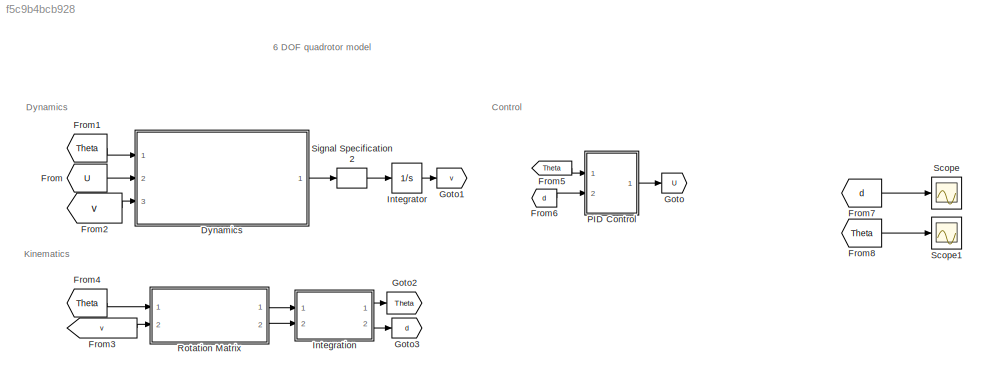
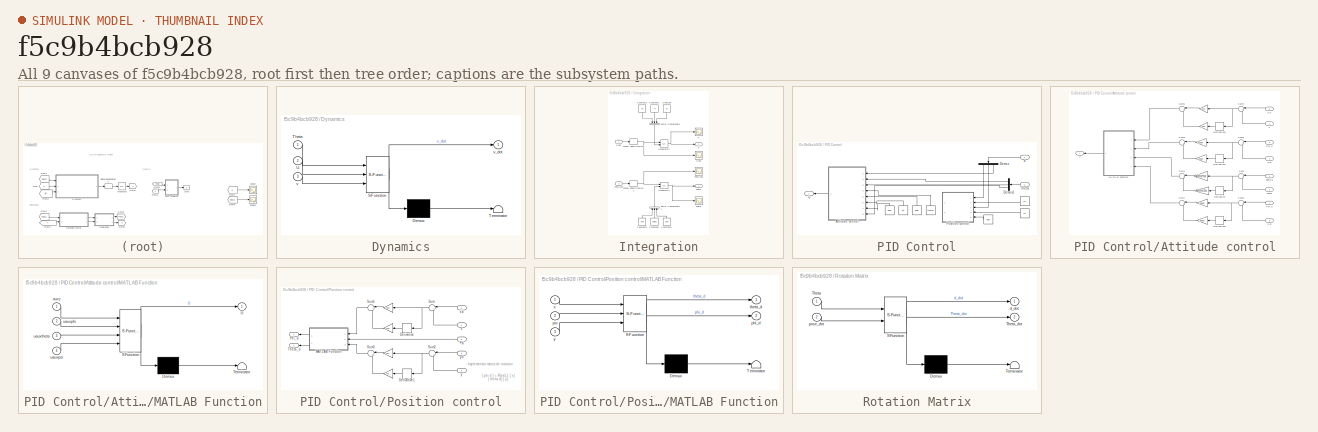
[diagram: thumbnail index - all 9 canvases of the model, root first then tree order]
MODEL slx_f5c9b4bcb928
KIND model
CONFIG AbsTol = auto
CONFIG EnableMultiTasking = off
CONFIG FixedStep = 0.01
CONFIG MaxStep = auto
CONFIG MinStep = auto
CONFIG RelTol = 1e-3
CONFIG SampleTimeConstraint = Unconstrained
CONFIG SolverName = ode1
CONFIG StartTime = 0.0
CONFIG StopTime = 30
WORKSPACE source: mxarray member
WORKSPACE Ixx = 3.0738e-05
WORKSPACE Iyy = 3.0849e-05
WORKSPACE Izz = 5.968e-05
WORKSPACE Jr: Simulink.Parameter (value not decoded)
WORKSPACE Kemf: Simulink.Parameter (value not decoded)
WORKSPACE Kt: Simulink.Parameter (value not decoded)
WORKSPACE L: Simulink.Parameter (value not decoded)
WORKSPACE R: Simulink.Parameter (value not decoded)
WORKSPACE b_m: Simulink.Parameter (value not decoded)
WORKSPACE g: Simulink.Parameter (value not decoded)
WORKSPACE kq = 1.058e-10
WORKSPACE kt = 3.334e-08
WORKSPACE l = 0.058
WORKSPACE m: Simulink.Parameter (value not decoded)
WORKSPACE qt = 5.4e-09
BLOCK [SubSystem] Dynamics
  ErrorFcn = Stateflow.Translate.translate
  PermitHierarchicalResolution = ExplicitOnly
  Ports = [3, 1]
  RequestExecContextInheritance = off
  SFBlockType = MATLAB Function
  TreatAsAtomicUnit = on
BLOCK [Demux] Dynamics/ Demux 
  Outputs = 1
  Ports = [1, 1]
BLOCK [S-Function] Dynamics/ SFunction 
  EnableBusSupport = on
  FunctionName = sf_sfun
  PortCounts = [3 2]
  Ports = [3, 2]
  SFcnIsStateOwnerBlock = off
  SFunctionDeploymentMode = off
  Tag = Stateflow S-Function 1
BLOCK [Terminator] Dynamics/ Terminator 
BLOCK [Inport] Dynamics/Theta
BLOCK [Inport] Dynamics/U
  Port = 2
BLOCK [Inport] Dynamics/v
  Port = 3
BLOCK [Outport] Dynamics/v_dot
BLOCK [From] From
  GotoTag = U
BLOCK [From] From1
  GotoTag = Theta
BLOCK [From] From2
  GotoTag = v
BLOCK [From] From3
  GotoTag = v
BLOCK [From] From4
  GotoTag = Theta
BLOCK [From] From5
  GotoTag = Theta
BLOCK [From] From6
  GotoTag = d
BLOCK [From] From7
  GotoTag = d
BLOCK [From] From8
  GotoTag = Theta
BLOCK [Goto] Goto
  GotoTag = U
BLOCK [Goto] Goto1
  GotoTag = v
BLOCK [Goto] Goto2
  GotoTag = Theta
BLOCK [Goto] Goto3
  GotoTag = d
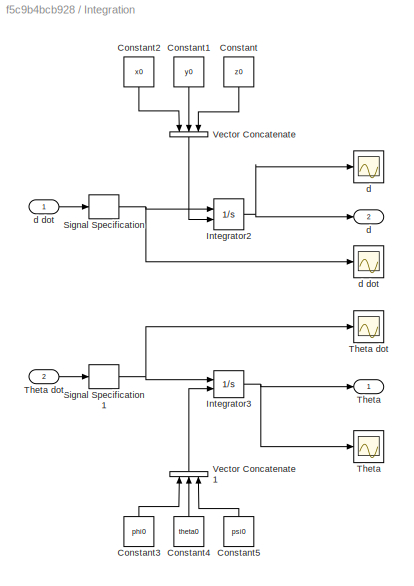
BLOCK [SubSystem] Integration
  Ports = [2, 2]
  RequestExecContextInheritance = off
BLOCK [Constant] Integration/Constant
  NameLocation = left
  Value = z0
BLOCK [Constant] Integration/Constant1
  NameLocation = left
  Value = y0
BLOCK [Constant] Integration/Constant2
  NameLocation = left
  Value = x0
BLOCK [Constant] Integration/Constant3
  NameLocation = right
  Value = phi0
BLOCK [Constant] Integration/Constant4
  NameLocation = right
  Value = theta0
BLOCK [Constant] Integration/Constant5
  NameLocation = right
  Value = psi0
BLOCK [Integrator] Integration/Integrator2
  InitialConditionSource = external
  Ports = [2, 1]
BLOCK [Integrator] Integration/Integrator3
  InitialCondition = [20*pi/180;-20*pi/180;45*pi/180]
  InitialConditionSource = external
  Ports = [2, 1]
  WrapState = on
BLOCK [SignalSpecification] Integration/Signal Specification
  Dimensions = 3
BLOCK [SignalSpecification] Integration/Signal Specification1
  Dimensions = 3
BLOCK [Outport] Integration/Theta
BLOCK [Scope] Integration/Theta 
  Floating = off
  NumInputPorts = 1
  Ports = [1]
  ScopeSpecificationString = Simulink.scopes.TimeScopeBlockCfg('CurrentConfiguration', extmgr.ConfigurationSet(extmgr.Configuration('Core','General UI',true),extmgr.Configuration('Core','Source UI',true),extmgr.Configuration('Sources','WiredSimulink',true,'DataLoggingVariableName','ScopeData4'),extmgr.Configuration('Visuals','Time Domain',true,'SerializedDisplays',{struct('MinYLimReal','-0.0625','MaxYLimReal','0.5625','YLabel...<+1491ch>
BLOCK [Inport] Integration/Theta dot
  Port = 2
BLOCK [Scope] Integration/Theta dot 
  Floating = off
  NumInputPorts = 1
  Ports = [1]
  ScopeSpecificationString = Simulink.scopes.TimeScopeBlockCfg('CurrentConfiguration', extmgr.ConfigurationSet(extmgr.Configuration('Core','General UI',true),extmgr.Configuration('Core','Source UI',true),extmgr.Configuration('Sources','WiredSimulink',true,'DataLoggingVariableName','ScopeData2'),extmgr.Configuration('Visuals','Time Domain',true,'SerializedDisplays',{struct('MinYLimReal','-0.0001','MaxYLimReal','0.00001','YLabe...<+1473ch>
BLOCK [Concatenate] Integration/Vector Concatenate
  NameLocation = left
  NumInputs = 3
  Ports = [3, 1]
BLOCK [Concatenate] Integration/Vector Concatenate1
  NameLocation = right
  NumInputs = 3
  Ports = [3, 1]
BLOCK [Outport] Integration/d
  Port = 2
BLOCK [Scope] Integration/d 
  Floating = off
  NumInputPorts = 1
  Ports = [1]
  ScopeSpecificationString = Simulink.scopes.TimeScopeBlockCfg('CurrentConfiguration', extmgr.ConfigurationSet(extmgr.Configuration('Core','General UI',true),extmgr.Configuration('Core','Source UI',true),extmgr.Configuration('Sources','WiredSimulink',true,'DataLoggingVariableName','ScopeData3'),extmgr.Configuration('Visuals','Time Domain',true,'SerializedDisplays',{struct('MinYLimReal','-17.10213','MaxYLimReal','153.91919','Y...<+1491ch>
BLOCK [Inport] Integration/d dot
BLOCK [Scope] Integration/d dot 
  Floating = off
  NumInputPorts = 1
  Ports = [1]
  ScopeSpecificationString = Simulink.scopes.TimeScopeBlockCfg('CurrentConfiguration', extmgr.ConfigurationSet(extmgr.Configuration('Core','General UI',true),extmgr.Configuration('Core','Source UI',true),extmgr.Configuration('Sources','WiredSimulink',true,'DataLoggingVariableName','ScopeData1'),extmgr.Configuration('Visuals','Time Domain',true,'SerializedDisplays',{struct('MinYLimReal','-1.14501','MaxYLimReal','10.30513','YLa...<+1532ch>
BLOCK [Integrator] Integrator
  Ports = [1, 1]
BLOCK [SubSystem] PID Control
  Ports = [2, 1]
  RequestExecContextInheritance = off
BLOCK [Constant] PID Control/ 
  Value = psid
BLOCK [Constant] PID Control/  
  Value = zd
BLOCK [Constant] PID Control/   
  NameLocation = top
  Value = yd
BLOCK [Constant] PID Control/     
  NameLocation = top
  Value = xd
BLOCK [Constant] PID Control/        
  NameLocation = right
  Value = psid
BLOCK [Constant] PID Control/         
  Value = thetad
BLOCK [Constant] PID Control/                 
  Value = phid
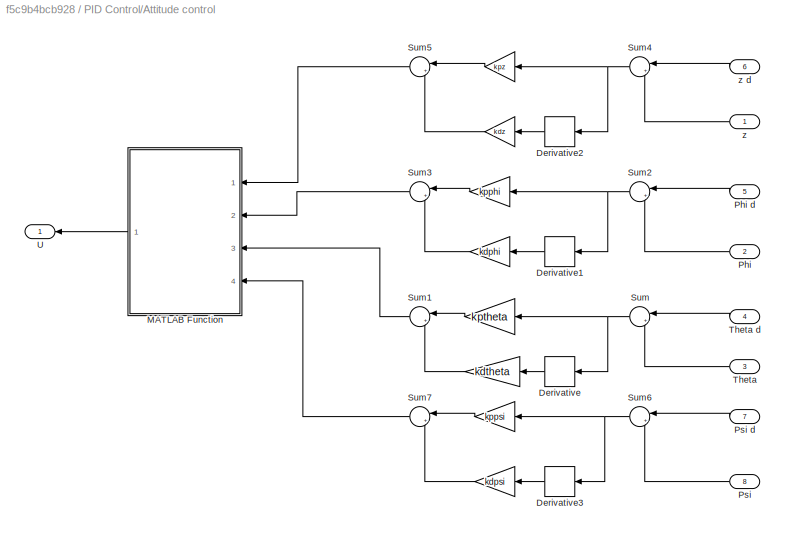
BLOCK [SubSystem] PID Control/Attitude control
  NameLocation = top
  Ports = [8, 1]
  RequestExecContextInheritance = off
BLOCK [Gain] PID Control/Attitude control/ 
  Gain = kdpsi
  NameLocation = top
BLOCK [Gain] PID Control/Attitude control/  
  Gain = kppsi
  NameLocation = top
BLOCK [Gain] PID Control/Attitude control/    
  Gain = kdtheta
  NameLocation = top
BLOCK [Gain] PID Control/Attitude control/     
  Gain = kptheta
  NameLocation = top
BLOCK [Gain] PID Control/Attitude control/       
  Gain = kdphi
  NameLocation = top
BLOCK [Gain] PID Control/Attitude control/        
  Gain = kpphi
  NameLocation = top
BLOCK [Gain] PID Control/Attitude control/         
  Gain = kdz
  NameLocation = top
BLOCK [Gain] PID Control/Attitude control/          
  Gain = kpz
  NameLocation = top
BLOCK [Derivative] PID Control/Attitude control/Derivative
  NameLocation = top
BLOCK [Derivative] PID Control/Attitude control/Derivative1
  NameLocation = top
BLOCK [Derivative] PID Control/Attitude control/Derivative2
  NameLocation = top
BLOCK [Derivative] PID Control/Attitude control/Derivative3
  NameLocation = top
BLOCK [SubSystem] PID Control/Attitude control/MATLAB Function
  ErrorFcn = Stateflow.Translate.translate
  NameLocation = top
  PermitHierarchicalResolution = ExplicitOnly
  Ports = [4, 1]
  RequestExecContextInheritance = off
  SFBlockType = MATLAB Function
  TreatAsAtomicUnit = on
BLOCK [Demux] PID Control/Attitude control/MATLAB Function/ Demux 
  Outputs = 1
  Ports = [1, 1]
BLOCK [S-Function] PID Control/Attitude control/MATLAB Function/ SFunction 
  EnableBusSupport = on
  FunctionName = sf_sfun
  PortCounts = [4 2]
  Ports = [4, 2]
  SFcnIsStateOwnerBlock = off
  SFunctionDeploymentMode = off
  Tag = Stateflow S-Function 5
BLOCK [Terminator] PID Control/Attitude control/MATLAB Function/ Terminator 
BLOCK [Outport] PID Control/Attitude control/MATLAB Function/U
BLOCK [Inport] PID Control/Attitude control/MATLAB Function/auxz
BLOCK [Inport] PID Control/Attitude control/MATLAB Function/uauxphi
  Port = 2
BLOCK [Inport] PID Control/Attitude control/MATLAB Function/uauxpsi
  Port = 4
BLOCK [Inport] PID Control/Attitude control/MATLAB Function/uauxtheta
  Port = 3
BLOCK [Inport] PID Control/Attitude control/Phi
  NameLocation = top
  Port = 2
BLOCK [Inport] PID Control/Attitude control/Phi d
  NameLocation = top
  Port = 5
BLOCK [Inport] PID Control/Attitude control/Psi
  NameLocation = top
  Port = 8
BLOCK [Inport] PID Control/Attitude control/Psi d
  NameLocation = top
  Port = 7
BLOCK [Sum] PID Control/Attitude control/Sum
  Inputs = |+-
  NameLocation = top
  Ports = [2, 1]
BLOCK [Sum] PID Control/Attitude control/Sum1
  Inputs = |++
  NameLocation = top
  Ports = [2, 1]
BLOCK [Sum] PID Control/Attitude control/Sum2
  Inputs = |+-
  NameLocation = top
  Ports = [2, 1]
BLOCK [Sum] PID Control/Attitude control/Sum3
  Inputs = |++
  NameLocation = top
  Ports = [2, 1]
BLOCK [Sum] PID Control/Attitude control/Sum4
  Inputs = |+-
  NameLocation = top
  Ports = [2, 1]
BLOCK [Sum] PID Control/Attitude control/Sum5
  Inputs = |++
  NameLocation = top
  Ports = [2, 1]
BLOCK [Sum] PID Control/Attitude control/Sum6
  Inputs = |+-
  NameLocation = top
  Ports = [2, 1]
BLOCK [Sum] PID Control/Attitude control/Sum7
  Inputs = |++
  NameLocation = top
  Ports = [2, 1]
BLOCK [Inport] PID Control/Attitude control/Theta
  NameLocation = top
  Port = 3
BLOCK [Inport] PID Control/Attitude control/Theta d
  NameLocation = top
  Port = 4
BLOCK [Outport] PID Control/Attitude control/U
  NameLocation = top
BLOCK [Inport] PID Control/Attitude control/z
  NameLocation = top
BLOCK [Inport] PID Control/Attitude control/z d
  NameLocation = top
  Port = 6
BLOCK [Demux] PID Control/Demux
  NameLocation = left
  Outputs = 3
  Ports = [1, 3]
BLOCK [Demux] PID Control/Demux1
  NameLocation = top
  Outputs = 3
  Ports = [1, 3]
BLOCK [SubSystem] PID Control/Position control
  NameLocation = top
  Ports = [5, 2]
  RequestExecContextInheritance = off
BLOCK [Gain] PID Control/Position control/ 
  Gain = kpy
  NameLocation = top
BLOCK [Gain] PID Control/Position control/  
  Gain = kdy
  NameLocation = top
BLOCK [Gain] PID Control/Position control/   
  Gain = kdx
  NameLocation = top
BLOCK [Gain] PID Control/Position control/    
  Gain = kpx
  NameLocation = top
BLOCK [Derivative] PID Control/Position control/Derivative
  NameLocation = top
BLOCK [Derivative] PID Control/Position control/Derivative1
  NameLocation = top
BLOCK [SubSystem] PID Control/Position control/MATLAB Function
  ErrorFcn = Stateflow.Translate.translate
  NameLocation = top
  PermitHierarchicalResolution = ExplicitOnly
  Ports = [3, 2]
  RequestExecContextInheritance = off
  SFBlockType = MATLAB Function
  TreatAsAtomicUnit = on
BLOCK [Demux] PID Control/Position control/MATLAB Function/ Demux 
  Outputs = 1
  Ports = [1, 1]
BLOCK [S-Function] PID Control/Position control/MATLAB Function/ SFunction 
  EnableBusSupport = on
  FunctionName = sf_sfun
  PortCounts = [3 3]
  Ports = [3, 3]
  SFcnIsStateOwnerBlock = off
  SFunctionDeploymentMode = off
  Tag = Stateflow S-Function 3
BLOCK [Terminator] PID Control/Position control/MATLAB Function/ Terminator 
BLOCK [Outport] PID Control/Position control/MATLAB Function/phi_d
  Port = 2
BLOCK [Inport] PID Control/Position control/MATLAB Function/psi
  Port = 2
BLOCK [Outport] PID Control/Position control/MATLAB Function/theta_d
BLOCK [Inport] PID Control/Position control/MATLAB Function/x
BLOCK [Inport] PID Control/Position control/MATLAB Function/y
  Port = 3
BLOCK [Outport] PID Control/Position control/Phi_d
  NameLocation = top
  Port = 2
BLOCK [Inport] PID Control/Position control/Psi
  NameLocation = top
  Port = 5
BLOCK [Sum] PID Control/Position control/Sum
  Inputs = |+-
  NameLocation = top
  Ports = [2, 1]
BLOCK [Sum] PID Control/Position control/Sum1
  Inputs = |++
  NameLocation = top
  Ports = [2, 1]
BLOCK [Sum] PID Control/Position control/Sum2
  Inputs = |+-
  NameLocation = top
  Ports = [2, 1]
BLOCK [Sum] PID Control/Position control/Sum3
  Inputs = |++
  NameLocation = top
  Ports = [2, 1]
BLOCK [Outport] PID Control/Position control/Theta_d
  NameLocation = top
BLOCK [Inport] PID Control/Position control/x
  NameLocation = top
BLOCK [Inport] PID Control/Position control/x d
  NameLocation = top
  Port = 2
BLOCK [Inport] PID Control/Position control/y
  NameLocation = top
  Port = 3
BLOCK [Inport] PID Control/Position control/y d
  NameLocation = top
  Port = 4
BLOCK [Inport] PID Control/Theta
  NameLocation = top
BLOCK [Outport] PID Control/U
  NameLocation = top
BLOCK [Inport] PID Control/d
  NameLocation = top
  Port = 2
BLOCK [SubSystem] Rotation Matrix
  ErrorFcn = Stateflow.Translate.translate
  PermitHierarchicalResolution = ExplicitOnly
  Ports = [2, 2]
  RequestExecContextInheritance = off
  SFBlockType = MATLAB Function
  TreatAsAtomicUnit = on
BLOCK [Demux] Rotation Matrix/ Demux 
  Outputs = 1
  Ports = [1, 1]
BLOCK [S-Function] Rotation Matrix/ SFunction 
  EnableBusSupport = on
  FunctionName = sf_sfun
  PortCounts = [2 3]
  Ports = [2, 3]
  SFcnIsStateOwnerBlock = off
  SFunctionDeploymentMode = off
  Tag = Stateflow S-Function 4
BLOCK [Terminator] Rotation Matrix/ Terminator 
BLOCK [Inport] Rotation Matrix/Theta
BLOCK [Outport] Rotation Matrix/Theta_dot
  Port = 2
BLOCK [Outport] Rotation Matrix/d_dot
BLOCK [Inport] Rotation Matrix/pose_dot
  Port = 2
BLOCK [Scope] Scope
  Floating = off
  NumInputPorts = 1
  Ports = [1]
  ScopeSpecificationString = Simulink.scopes.TimeScopeBlockCfg('CurrentConfiguration', extmgr.ConfigurationSet(extmgr.Configuration('Core','General UI',true),extmgr.Configuration('Core','Source UI',true),extmgr.Configuration('Sources','WiredSimulink',true,'DataLoggingVariableName','ScopeData1'),extmgr.Configuration('Visuals','Time Domain',true,'SerializedDisplays',{struct('MinYLimReal','-15.25985','MaxYLimReal','124.01806','Y...<+1420ch>
BLOCK [Scope] Scope1
  Floating = off
  NumInputPorts = 1
  Ports = [1]
  ScopeSpecificationString = Simulink.scopes.TimeScopeBlockCfg('CurrentConfiguration', extmgr.ConfigurationSet(extmgr.Configuration('Core','General UI',true),extmgr.Configuration('Core','Source UI',true),extmgr.Configuration('Sources','WiredSimulink',true,'DataLoggingVariableName','ScopeData2'),extmgr.Configuration('Visuals','Time Domain',true,'SerializedDisplays',{struct('MinYLimReal','-0.05','MaxYLimReal','0.45','YLabelReal...<+1392ch>
BLOCK [SignalSpecification] Signal Specification2
  Dimensions = 6
ANNOTATION (root): 6 DOF quadrotor model
ANNOTATION (root): Control
ANNOTATION (root): Dynamics
ANNOTATION (root): Kinematics
ANNOTATION PID Control/Position control: - Implementar matriz de rotacion
ANNOTATION PID Control/Position control: [ phi d ] = R(psi)-1 [ x ] [ theta d] [ y ]
LINE Dynamics:1 -> Signal Specification2:1
LINE From1:1 -> Dynamics:1
LINE From2:1 -> Dynamics:3
LINE From3:1 -> Rotation Matrix:2
LINE From4:1 -> Rotation Matrix:1
LINE From5:1 -> PID Control:1
LINE From6:1 -> PID Control:2
LINE From7:1 -> Scope:1
LINE From8:1 -> Scope1:1
LINE From:1 -> Dynamics:2
LINE Integration/Constant1:1 -> Integration/Vector Concatenate:2
LINE Integration/Constant2:1 -> Integration/Vector Concatenate:1
LINE Integration/Constant3:1 -> Integration/Vector Concatenate1:1
LINE Integration/Constant4:1 -> Integration/Vector Concatenate1:2
LINE Integration/Constant5:1 -> Integration/Vector Concatenate1:3
LINE Integration/Constant:1 -> Integration/Vector Concatenate:3
NET Integration/Integrator2:1 -> Integration/d :1, Integration/d:1
NET Integration/Integrator3:1 -> Integration/Theta :1, Integration/Theta:1
NET Integration/Signal Specification1:1 -> Integration/Integrator3:1, Integration/Theta dot :1
NET Integration/Signal Specification:1 -> Integration/Integrator2:1, Integration/d dot :1
LINE Integration/Theta dot:1 -> Integration/Signal Specification1:1
LINE Integration/Vector Concatenate1:1 -> Integration/Integrator3:2
LINE Integration/Vector Concatenate:1 -> Integration/Integrator2:2
LINE Integration/d dot:1 -> Integration/Signal Specification:1
LINE Integration:1 -> Goto2:1
LINE Integration:2 -> Goto3:1
LINE Integrator:1 -> Goto1:1
LINE PID Control/                 :1 -> PID Control/Attitude control:5
LINE PID Control/         :1 -> PID Control/Attitude control:4
LINE PID Control/        :1 -> PID Control/Position control:5
LINE PID Control/     :1 -> PID Control/Position control:2
LINE PID Control/   :1 -> PID Control/Position control:4
LINE PID Control/  :1 -> PID Control/Attitude control:6
LINE PID Control/ :1 -> PID Control/Attitude control:7
LINE PID Control/Attitude control/          :1 -> PID Control/Attitude control/Sum5:1
LINE PID Control/Attitude control/         :1 -> PID Control/Attitude control/Sum5:2
LINE PID Control/Attitude control/        :1 -> PID Control/Attitude control/Sum3:1
LINE PID Control/Attitude control/       :1 -> PID Control/Attitude control/Sum3:2
LINE PID Control/Attitude control/     :1 -> PID Control/Attitude control/Sum1:1
LINE PID Control/Attitude control/    :1 -> PID Control/Attitude control/Sum1:2
LINE PID Control/Attitude control/  :1 -> PID Control/Attitude control/Sum7:1
LINE PID Control/Attitude control/ :1 -> PID Control/Attitude control/Sum7:2
LINE PID Control/Attitude control/Derivative1:1 -> PID Control/Attitude control/       :1
LINE PID Control/Attitude control/Derivative2:1 -> PID Control/Attitude control/         :1
LINE PID Control/Attitude control/Derivative3:1 -> PID Control/Attitude control/ :1
LINE PID Control/Attitude control/Derivative:1 -> PID Control/Attitude control/    :1
LINE PID Control/Attitude control/MATLAB Function:1 -> PID Control/Attitude control/U:1
LINE PID Control/Attitude control/Phi d:1 -> PID Control/Attitude control/Sum2:1
LINE PID Control/Attitude control/Phi:1 -> PID Control/Attitude control/Sum2:2
LINE PID Control/Attitude control/Psi d:1 -> PID Control/Attitude control/Sum6:1
LINE PID Control/Attitude control/Psi:1 -> PID Control/Attitude control/Sum6:2
LINE PID Control/Attitude control/Sum1:1 -> PID Control/Attitude control/MATLAB Function:3
NET PID Control/Attitude control/Sum2:1 -> PID Control/Attitude control/        :1, PID Control/Attitude control/Derivative1:1
LINE PID Control/Attitude control/Sum3:1 -> PID Control/Attitude control/MATLAB Function:2
NET PID Control/Attitude control/Sum4:1 -> PID Control/Attitude control/          :1, PID Control/Attitude control/Derivative2:1
LINE PID Control/Attitude control/Sum5:1 -> PID Control/Attitude control/MATLAB Function:1
NET PID Control/Attitude control/Sum6:1 -> PID Control/Attitude control/  :1, PID Control/Attitude control/Derivative3:1
LINE PID Control/Attitude control/Sum7:1 -> PID Control/Attitude control/MATLAB Function:4
NET PID Control/Attitude control/Sum:1 -> PID Control/Attitude control/     :1, PID Control/Attitude control/Derivative:1
LINE PID Control/Attitude control/Theta d:1 -> PID Control/Attitude control/Sum:1
LINE PID Control/Attitude control/Theta:1 -> PID Control/Attitude control/Sum:2
LINE PID Control/Attitude control/z d:1 -> PID Control/Attitude control/Sum4:1
LINE PID Control/Attitude control/z:1 -> PID Control/Attitude control/Sum4:2
LINE PID Control/Attitude control:1 -> PID Control/U:1
LINE PID Control/Demux1:1 -> PID Control/Attitude control:2
LINE PID Control/Demux1:2 -> PID Control/Attitude control:3
LINE PID Control/Demux1:3 -> PID Control/Attitude control:8
LINE PID Control/Demux:1 -> PID Control/Position control:1
LINE PID Control/Demux:2 -> PID Control/Position control:3
LINE PID Control/Demux:3 -> PID Control/Attitude control:1
LINE PID Control/Position control/    :1 -> PID Control/Position control/Sum1:1
LINE PID Control/Position control/   :1 -> PID Control/Position control/Sum1:2
LINE PID Control/Position control/  :1 -> PID Control/Position control/Sum3:2
LINE PID Control/Position control/ :1 -> PID Control/Position control/Sum3:1
LINE PID Control/Position control/Derivative1:1 -> PID Control/Position control/  :1
LINE PID Control/Position control/Derivative:1 -> PID Control/Position control/   :1
LINE PID Control/Position control/MATLAB Function:1 -> PID Control/Position control/Phi_d:1
LINE PID Control/Position control/MATLAB Function:2 -> PID Control/Position control/Theta_d:1
LINE PID Control/Position control/Psi:1 -> PID Control/Position control/MATLAB Function:2
LINE PID Control/Position control/Sum1:1 -> PID Control/Position control/MATLAB Function:1
NET PID Control/Position control/Sum2:1 -> PID Control/Position control/ :1, PID Control/Position control/Derivative1:1
LINE PID Control/Position control/Sum3:1 -> PID Control/Position control/MATLAB Function:3
NET PID Control/Position control/Sum:1 -> PID Control/Position control/    :1, PID Control/Position control/Derivative:1
LINE PID Control/Position control/x d:1 -> PID Control/Position control/Sum:1
LINE PID Control/Position control/x:1 -> PID Control/Position control/Sum:2
LINE PID Control/Position control/y d:1 -> PID Control/Position control/Sum2:1
LINE PID Control/Position control/y:1 -> PID Control/Position control/Sum2:2
LINE PID Control/Theta:1 -> PID Control/Demux1:1
LINE PID Control/d:1 -> PID Control/Demux:1
LINE PID Control:1 -> Goto:1
LINE Rotation Matrix:1 -> Integration:1
LINE Rotation Matrix:2 -> Integration:2
LINE Signal Specification2:1 -> Integrator:1
note: NET lines group one-source signal fan-out (src -> all destinations, sorted); 1:1 wires keep LINE
CHART Dynamics states=1 transitions=1
  STATE_LABEL 'eML_blk_kernel()'
  STATE_LABEL 'SCRIPT:\nfunction v_dot  = fcn(Theta, U, v)\n\n\nF = [U(1);\n     U(2);\n     U(3);];\n\nN = [U(4);\n     U(5);\n     U(6);];\n\nI = [3.0738e-5, 0, 0;\n     0, 3.0849e-5, 0;\n     0, 0,  3.968e-5;];\n\nphi = Theta(1);\ntheta = Theta(2);\nm = 0.05656;\ng = 9.81;\nv_lineal = [v(1);\n            v(2); \n            v(3)];\nv_angular = [v(4);\n             v(5);\n             v(6)];\n\nFg = [-m*g*sin(theta); m*g*cos(theta)*sin(...<+292ch>'
CHART PID Control/Position control/MATLAB Function states=1 transitions=1
  STATE_LABEL 'eML_blk_kernel()'
  STATE_LABEL 'SCRIPT:\nfunction [theta_d, phi_d]= fcn(x, psi, y)\n\nOutm = [cosd(psi), sind(psi);\n       -sind(psi), cosd(psi);]*[x;y];\n\nphi_d = Outm(1);\ntheta_d = Outm(2);\n'
CHART Rotation Matrix states=1 transitions=1
  STATE_LABEL 'eML_blk_kernel()'
  STATE_LABEL 'SCRIPT:\nfunction [d_dot,Theta_dot] = fcn(Theta, pose_dot)\n\nphi = Theta(1);\ntheta = Theta(2);\npsi = Theta(3);\n\nR_1 = [cos(psi)*cos(theta), -cos(phi)*sin(psi)+cos(psi)*sin(phi)*sin(theta), sin(phi)*sin(psi)+cos(phi)*cos(psi)*(sin(theta));\n       cos(theta)*sin(psi), cos(phi)*cos(psi)+sin(psi)*sin(theta)*sin(phi), -cos(psi)*sin(phi)+sin(psi)*sin(theta)*cos(phi);\n      -sin(theta), cos(theta)*sin(phi)...<+265ch>'
CHART PID Control/Attitude control/MATLAB Function states=1 transitions=1
  STATE_LABEL 'eML_blk_kernel()'
  STATE_LABEL 'SCRIPT:\nfunction U = fcn(auxz, uauxphi, uauxtheta, uauxpsi)\n\n%Ixx = data(1);\n%Iyy = data(2);\n%Izz = data(3);\n\n%U6 = Izz*(((Iyy-Ixx)*theta_dot(1)*theta_dot(2))/Izz + uauxpsi); \n%U = [0;0;U3,U4,U5,U6];\n\nU = [0;0;auxz; uauxphi; uauxtheta; uauxpsi];\n'
CHART  states=0 transitions=0
CHART  states=0 transitions=0
CHART  states=0 transitions=0
CHART  states=0 transitions=0
